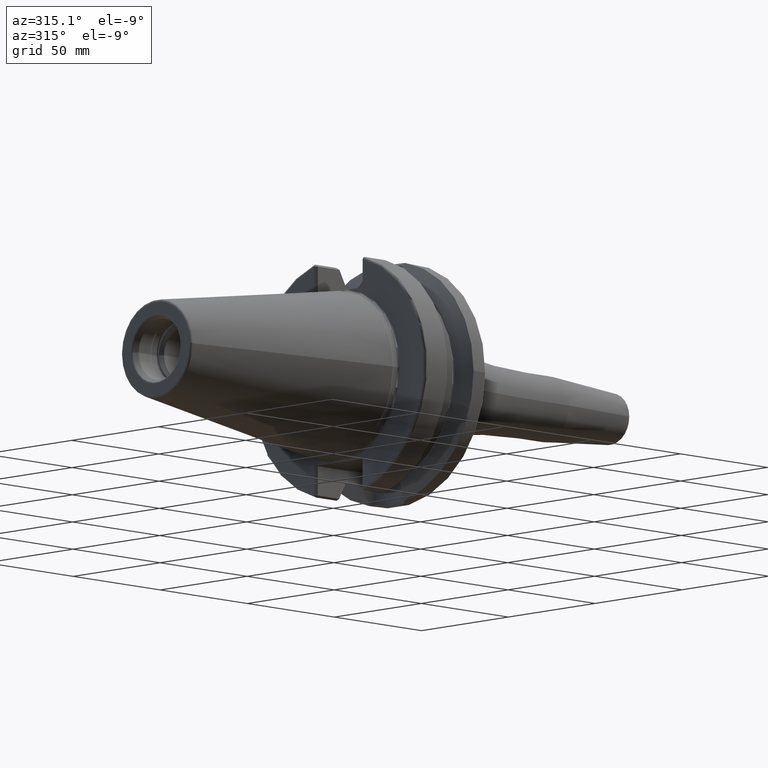
[diagram: clean part render]
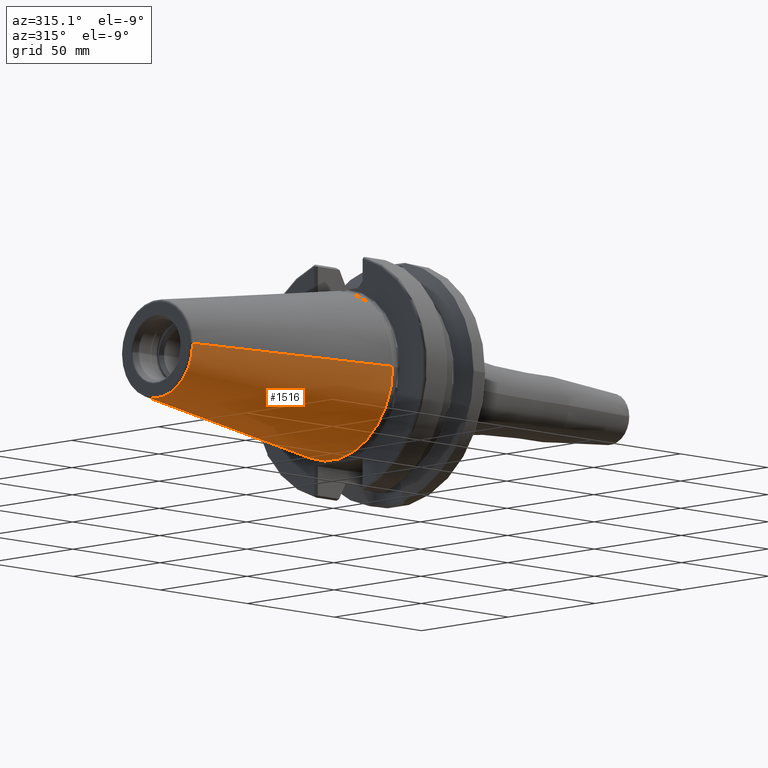
[diagram: same view with one face highlighted and labeled with its STEP entity id]
A machine part, auxiliary view. The second image highlights one B-rep face of the part: STEP entity #1516.
In plain terms, the highlighted conical surface has half-angle 8.298 deg.
Its self-contained STEP definition (entity closure, byte-faithful):
#32=CARTESIAN_POINT('',(-1.009443186692E2,0.E0,0.E0));
#33=DIRECTION('',(-1.E0,0.E0,0.E0));
#34=DIRECTION('',(0.E0,1.E0,0.E0));
#35=AXIS2_PLACEMENT_3D('',#32,#33,#34);
#47=DIRECTION('',(-9.895312636440E-1,-1.443186691705E-1,0.E0));
#48=VECTOR('',#47,1.013865167670E2);
#49=CARTESIAN_POINT('',(-6.191906162849E-1,3.483469384295E1,0.E0));
#50=LINE('',#49,#48);
#51=DIRECTION('',(-9.895312636440E-1,1.443186691705E-1,0.E0));
#52=VECTOR('',#51,1.013865167670E2);
#53=CARTESIAN_POINT('',(-6.191906162849E-1,-3.483469384295E1,0.E0));
#54=LINE('',#53,#52);
#55=CARTESIAN_POINT('',(-6.191906162850E-1,0.E0,0.E0));
#56=DIRECTION('',(-1.E0,0.E0,0.E0));
#57=DIRECTION('',(0.E0,1.E0,0.E0));
#58=AXIS2_PLACEMENT_3D('',#55,#56,#57);
#1188=CARTESIAN_POINT('',(-1.009443186692E2,2.020272667130E1,0.E0));
#1190=VERTEX_POINT('',#1188);
#1192=CARTESIAN_POINT('',(-1.009443186692E2,-2.020272667130E1,0.E0));
#1194=VERTEX_POINT('',#1192);
#1407=CARTESIAN_POINT('',(-6.191906162849E-1,3.483469384295E1,0.E0));
#1408=VERTEX_POINT('',#1407);
#1409=CARTESIAN_POINT('',(-6.191906162849E-1,-3.483469384295E1,0.E0));
#1410=VERTEX_POINT('',#1409);
#1504=CARTESIAN_POINT('',(-5.078175464273E1,0.E0,0.E0));
#1505=DIRECTION('',(1.E0,0.E0,0.E0));
#1506=DIRECTION('',(0.E0,-1.E0,0.E0));
#1507=AXIS2_PLACEMENT_3D('',#1504,#1505,#1506);
#1508=CONICAL_SURFACE('',#1507,2.751871025712E1,8.297826828206E0);
#1509=ORIENTED_EDGE('',*,*,#1494,.T.);
#1510=ORIENTED_EDGE('',*,*,#1471,.T.);
#1511=ORIENTED_EDGE('',*,*,#1498,.F.);
#1513=ORIENTED_EDGE('',*,*,#1512,.F.);
#1514=EDGE_LOOP('',(#1509,#1510,#1511,#1513));
#1515=FACE_OUTER_BOUND('',#1514,.F.);
#1516=ADVANCED_FACE('',(#1515),#1508,.T.);
#36=CIRCLE('',#35,2.020272667130E1);
#59=CIRCLE('',#58,3.483469384295E1);
#1471=EDGE_CURVE('',#1190,#1194,#36,.T.);
#1494=EDGE_CURVE('',#1408,#1190,#50,.T.);
#1498=EDGE_CURVE('',#1410,#1194,#54,.T.);
#1512=EDGE_CURVE('',#1408,#1410,#59,.T.);